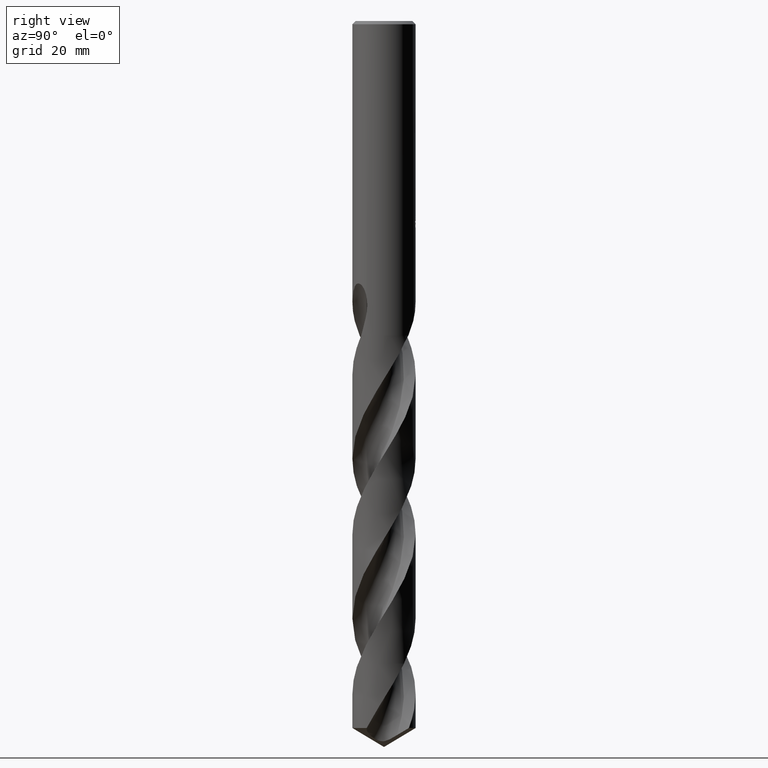
[diagram: clean part render]
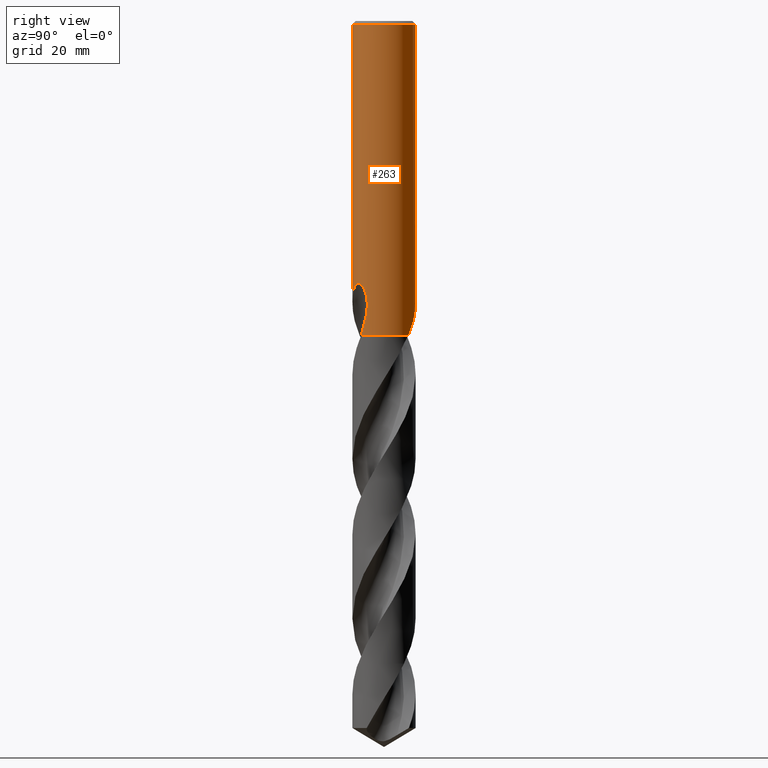
[diagram: same view with one face highlighted and labeled with its STEP entity id]
A machine part, right view. The second image highlights one B-rep face of the part: STEP entity #263.
In plain terms, the highlighted cylindrical surface (edge-blend (fillet) strip) has radius 7.75 mm, axis along (-0, -0, 1).
Its self-contained STEP definition (entity closure, byte-faithful):
#261=EDGE_CURVE('',#379,#699,#736,.T.);
#263=ADVANCED_FACE('',(#738),#739,.T.);
#291=EDGE_CURVE('',#341,#599,#770,.T.);
#311=EDGE_CURVE('',#697,#511,#792,.T.);
#319=VERTEX_POINT('',#801);
#341=VERTEX_POINT('',#825);
#357=EDGE_CURVE('',#485,#685,#844,.T.);
#361=EDGE_CURVE('',#699,#341,#849,.T.);
#365=VERTEX_POINT('',#854);
#367=EDGE_CURVE('',#599,#697,#856,.T.);
#379=VERTEX_POINT('',#868);
#401=VERTEX_POINT('',#892);
#427=EDGE_CURVE('',#365,#401,#920,.T.);
#455=EDGE_CURVE('',#319,#401,#950,.T.);
#479=EDGE_CURVE('',#575,#639,#975,.T.);
#485=VERTEX_POINT('',#981);
#511=VERTEX_POINT('',#1011);
#513=EDGE_CURVE('',#485,#511,#1013,.T.);
#557=EDGE_CURVE('',#669,#379,#1062,.T.);
#575=VERTEX_POINT('',#1081);
#599=VERTEX_POINT('',#1108);
#603=EDGE_CURVE('',#575,#685,#1112,.T.);
#611=EDGE_CURVE('',#319,#641,#1121,.T.);
#639=VERTEX_POINT('',#1149);
#641=VERTEX_POINT('',#1151);
#663=EDGE_CURVE('',#365,#669,#1175,.T.);
#669=VERTEX_POINT('',#1181);
#683=EDGE_CURVE('',#639,#641,#1196,.T.);
#685=VERTEX_POINT('',#1198);
#697=VERTEX_POINT('',#1212);
#699=VERTEX_POINT('',#1214);
#736=LINE('',#1246,#1247);
#738=FACE_OUTER_BOUND('',#1249,.T.);
#739=CYLINDRICAL_SURFACE('',#1250,7.75);
#770=LINE('',#2227,#2228);
#792=B_SPLINE_CURVE_WITH_KNOTS('',3,(#2463,#2464,#2465,#2466,#2467,#2468,#2469,#2470,#2471,#2472,#2473,#2474,#2475,#2476,#2477,#2478,#2479,#2480,#2481,#2482,#2483,#2484,#2485,#2486,#2487,#2488,#2489),.UNSPECIFIED.,.F.,.F.,(4,2,3,2,2,2,2,2,2,2,2,2,4),(-0.541951581782633,-0.270975790891317,0.0,0.270975790891317,0.541951581782634,0.813165260726697,1.08437893967076,1.3551971019943,1.62601526431784,1.89695021056667,2.1678851568155,2.43882010306434,2.70975504931317),.UNSPECIFIED.);
#801=CARTESIAN_POINT('',(4.9360343968483,5.97478572277956,-77.1));
#825=CARTESIAN_POINT('',(1.33721006514658,7.63376507640042,-50.2901657003257));
#844=CIRCLE('',#3154,7.75);
#849=B_SPLINE_CURVE_WITH_KNOTS('',3,(#3160,#3161,#3162,#3163,#3164,#3165,#3166,#3167,#3168,#3169),.UNSPECIFIED.,.F.,.F.,(4,2,2,2,4),(8.00141140635646,8.30904717966704,8.61668295297762,8.92441958328256,9.23215621358749),.UNSPECIFIED.);
#854=CARTESIAN_POINT('',(-7.24729156774638E-017,7.75,-51.0310253601033));
#856=B_SPLINE_CURVE_WITH_KNOTS('',3,(#3178,#3179,#3180,#3181,#3182,#3183,#3184,#3185,#3186,#3187),.UNSPECIFIED.,.F.,.F.,(4,2,2,2,4),(0.615473281841639,0.923209922762458,1.23094656368328,1.53858234748166,1.84621813128005),.UNSPECIFIED.);
#868=CARTESIAN_POINT('',(0.873560781758957,7.70060981744775,-49.3198931596091));
#892=CARTESIAN_POINT('',(-2.35370325795759E-012,7.75,-68.8669368238683));
#920=LINE('',#3407,#3408);
#950=B_SPLINE_CURVE_WITH_KNOTS('',3,(#3626,#3627,#3628,#3629,#3630,#3631,#3632,#3633,#3634,#3635,#3636,#3637,#3638,#3639,#3640,#3641,#3642,#3643,#3644,#3645,#3646,#3647,#3648,#3649,#3650,#3651,#3652,#3653,#3654,#3655),.UNSPECIFIED.,.F.,.F.,(4,2,2,2,2,2,2,2,2,2,2,2,2,2,4),(0.0,3.79341741066162,5.86636861631734,7.74448433522634,9.92672160655226,12.5478179394832,14.817318128479,15.8466209386008,16.5989605331823,17.3109232333634,18.2141345667042,19.5356069508276,21.4142088382462,22.643237703366,23.9348526179656),.UNSPECIFIED.);
#975=B_SPLINE_CURVE_WITH_KNOTS('',3,(#4017,#4018,#4019,#4020,#4021,#4022,#4023,#4024,#4025,#4026,#4027,#4028,#4029,#4030,#4031,#4032,#4033,#4034,#4035,#4036,#4037,#4038,#4039,#4040,#4041,#4042,#4043,#4044,#4045,#4046),.UNSPECIFIED.,.F.,.F.,(4,2,2,2,2,2,2,2,2,2,2,2,2,2,4),(0.0,3.79341741066165,5.86636861631742,7.74448433522648,9.92672160655248,12.5478179394837,14.8173181284795,15.8466209386018,16.5989605331833,17.3109232333642,18.2141345667049,19.5356069508284,21.4142088382493,22.6432377033713,23.9348526179729),.UNSPECIFIED.);
#981=CARTESIAN_POINT('',(0.0,7.75,-0.799999999999997));
#1011=CARTESIAN_POINT('',(-1.18960361364747E-014,7.75,-49.0232688117743));
#1013=LINE('',#5081,#5082);
#1062=ELLIPSE('',#5175,23.6219579436157,7.75);
#1081=CARTESIAN_POINT('',(2.36214095294474E-012,-7.75000000000001,-68.8669368238682));
#1108=CARTESIAN_POINT('',(1.33721006514658,7.63376507640042,-48.5150484364821));
#1112=LINE('',#5613,#5614);
#1121=CIRCLE('',#5782,7.75);
#1149=CARTESIAN_POINT('',(6.30572676569287,-4.5055865274595,-72.8612532363583));
#1151=CARTESIAN_POINT('',(5.38816952180957,-5.57046938814337,-77.1));
#1175=B_SPLINE_CURVE_WITH_KNOTS('',3,(#6452,#6453,#6454,#6455,#6456,#6457,#6458,#6459,#6460,#6461,#6462,#6463,#6464,#6465,#6466,#6467),.UNSPECIFIED.,.F.,.F.,(4,2,2,2,2,2,2,4),(5.84709226815887,6.15485130683978,6.46267360013421,6.77049589342865,7.07831818672308,7.38614048001751,7.69377627983509,8.00141207965267),.UNSPECIFIED.);
#1181=CARTESIAN_POINT('',(0.29010312703583,7.74456843056371,-50.9998328990228));
#1196=B_SPLINE_CURVE_WITH_KNOTS('',3,(#6939,#6940,#6941,#6942),.UNSPECIFIED.,.F.,.F.,(4,4),(0.0,4.44881791366115),.UNSPECIFIED.);
#1198=CARTESIAN_POINT('',(9.49069924212342E-016,-7.75,-0.799999999999997));
#1212=CARTESIAN_POINT('',(0.799431726384364,7.70865804889866,-48.000000276873));
#1214=CARTESIAN_POINT('',(0.873560781758956,7.70060981744775,-50.7587351791531));
#1246=CARTESIAN_POINT('',(0.873560781758957,7.70060981744775,-50.0393141693811));
#1247=VECTOR('',#7135,1.0);
#1249=EDGE_LOOP('',(#7137,#7138,#7139,#7140,#7141,#7142,#7143,#7144,#7145,#7146,#7147,#7148,#7149,#7150,#7151));
#1250=AXIS2_PLACEMENT_3D('',#7152,#7153,#7154);
#2227=CARTESIAN_POINT('',(1.33721006514658,7.63376507640042,-49.4026070684039));
#2228=VECTOR('',#7189,1.0);
#2463=CARTESIAN_POINT('',(0.664961639985142,7.72141994825746,-47.8134350921224));
#2464=CARTESIAN_POINT('',(0.728698885834064,7.71593095480654,-47.877200974006));
#2465=CARTESIAN_POINT('',(0.783984106617528,7.71033263491963,-47.9579666316848));
#2466=CARTESIAN_POINT('',(0.85733720264559,7.70252123319185,-48.1350216319595));
#2467=CARTESIAN_POINT('',(0.875400981188567,7.70040084165325,-48.2313167489563));
#2468=CARTESIAN_POINT('',(0.875400981188567,7.70040084165325,-48.3216420125868));
#2469=CARTESIAN_POINT('',(0.875400981188567,7.70040084165325,-48.4119672762172));
#2470=CARTESIAN_POINT('',(0.857337202645591,7.70252123319185,-48.508262393214));
#2471=CARTESIAN_POINT('',(0.783984106617523,7.71033263491963,-48.6853173934888));
#2472=CARTESIAN_POINT('',(0.728698885834064,7.71593095480654,-48.7660830511676));
#2473=CARTESIAN_POINT('',(0.60116843958304,7.72691376046345,-48.8936707946274));
#2474=CARTESIAN_POINT('',(0.520374014834367,7.7330187246311,-48.9490068762693));
#2475=CARTESIAN_POINT('',(0.343249360965991,7.74290304645482,-49.0224317810594));
#2476=CARTESIAN_POINT('',(0.246912509992356,7.74659326393315,-49.0405166027747));
#2477=CARTESIAN_POINT('',(0.0662720839900751,7.75024239459642,-49.0405166027747));
#2478=CARTESIAN_POINT('',(-0.0300038854938625,7.7504478545457,-49.0224789238631));
#2479=CARTESIAN_POINT('',(-0.207095321966796,7.74773861890407,-48.9491331835862));
#2480=CARTESIAN_POINT('',(-0.287912781697142,7.74491356866817,-48.8938266497492));
#2481=CARTESIAN_POINT('',(-0.41555773700909,7.73911462912551,-48.7662184517367));
#2482=CARTESIAN_POINT('',(-0.470894381802114,7.73576828953131,-48.6853925172609));
#2483=CARTESIAN_POINT('',(-0.544290513049244,7.73095080759028,-48.5082617282738));
#2484=CARTESIAN_POINT('',(-0.562348199187247,7.72957078387092,-48.4119536613364));
#2485=CARTESIAN_POINT('',(-0.562348199187247,7.72957078387092,-48.2313303638372));
#2486=CARTESIAN_POINT('',(-0.544290513049244,7.73095080759028,-48.1350222968998));
#2487=CARTESIAN_POINT('',(-0.470894381802114,7.73576828953131,-47.9578915079127));
#2488=CARTESIAN_POINT('',(-0.41555773700909,7.73911462912551,-47.8770655734369));
#2489=CARTESIAN_POINT('',(-0.351721501352756,7.74201472392595,-47.8132477203921));
#3154=AXIS2_PLACEMENT_3D('',#7287,#7288,#7289);
#3160=CARTESIAN_POINT('',(0.595649770493818,7.72707586030516,-50.9069866122182));
#3161=CARTESIAN_POINT('',(0.695919394136687,7.7193464709356,-50.8653950566208));
#3162=CARTESIAN_POINT('',(0.791983439288051,7.70994477092612,-50.8136466592594));
#3163=CARTESIAN_POINT('',(0.969555863903456,7.68963247272935,-50.6941793899783));
#3164=CARTESIAN_POINT('',(1.0510611501542,7.67874239789654,-50.6264524319793));
#3165=CARTESIAN_POINT('',(1.19534472171889,7.65760855855283,-50.4821904398216));
#3166=CARTESIAN_POINT('',(1.26309610210411,7.64661793083153,-50.4006744182108));
#3167=CARTESIAN_POINT('',(1.38260171114333,7.62591568612207,-50.2230847480411));
#3168=CARTESIAN_POINT('',(1.43436430523586,7.61622577591142,-50.1270141991867));
#3169=CARTESIAN_POINT('',(1.47596863371043,7.60815461148779,-50.0267355794347));
#3178=CARTESIAN_POINT('',(1.47596864177715,7.60815460992286,-48.7784785714682));
#3179=CARTESIAN_POINT('',(1.43436431186374,7.61622577467139,-48.678199948264));
#3180=CARTESIAN_POINT('',(1.38260171598154,7.6259156852616,-48.5821293961034));
#3181=CARTESIAN_POINT('',(1.26309610280848,7.64661793073184,-48.404539719822));
#3182=CARTESIAN_POINT('',(1.19534472007876,7.65760855883286,-48.3230236954059));
#3183=CARTESIAN_POINT('',(1.05106114354375,7.67874239882502,-48.1787616983119));
#3184=CARTESIAN_POINT('',(0.969555854501007,7.68963247395026,-48.1110347380059));
#3185=CARTESIAN_POINT('',(0.791983423802671,7.70994477255211,-47.9915674646544));
#3186=CARTESIAN_POINT('',(0.695919375360409,7.71934647267289,-47.9398190655292));
#3187=CARTESIAN_POINT('',(0.595649748284539,7.72707586201718,-47.8982275085153));
#3407=CARTESIAN_POINT('',(-9.49069924212342E-016,7.75,-65.05));
#3408=VECTOR('',#7380,1.0);
#3626=CARTESIAN_POINT('',(4.9360343968483,5.97478572277956,-77.1));
#3627=CARTESIAN_POINT('',(4.42500080060064,6.39697314941919,-76.0232024014518));
#3628=CARTESIAN_POINT('',(3.83762569201707,6.77216687091446,-75.0190961513844));
#3629=CARTESIAN_POINT('',(2.81342105883732,7.2321897324755,-73.3414507403934));
#3630=CARTESIAN_POINT('',(2.44468326100329,7.36458387863629,-72.7508837996524));
#3631=CARTESIAN_POINT('',(1.73077336241674,7.56246862871783,-71.6075649225821));
#3632=CARTESIAN_POINT('',(1.38877757208716,7.63238096469337,-71.060124295281));
#3633=CARTESIAN_POINT('',(0.648446639925861,7.73325762960889,-69.8801736690771));
#3634=CARTESIAN_POINT('',(0.243914434528973,7.75690954493945,-69.2384096457298));
#3635=CARTESIAN_POINT('',(-0.654409189888997,7.73787130292647,-67.8655978504634));
#3636=CARTESIAN_POINT('',(-1.18705183797595,7.67933590781923,-67.0844541919967));
#3637=CARTESIAN_POINT('',(-2.2137362868303,7.44317633062944,-65.7971987359769));
#3638=CARTESIAN_POINT('',(-2.78136929747014,7.26344685636064,-65.1695390881947));
#3639=CARTESIAN_POINT('',(-3.64070632246095,6.84809816915719,-64.581491704913));
#3640=CARTESIAN_POINT('',(-3.92530845356559,6.69120997499441,-64.4360892886023));
#3641=CARTESIAN_POINT('',(-4.42400537280382,6.3681732583236,-64.3244127118395));
#3642=CARTESIAN_POINT('',(-4.62855293486423,6.2210572910707,-64.3223452687737));
#3643=CARTESIAN_POINT('',(-5.00953704245579,5.9180284144636,-64.4201586225148));
#3644=CARTESIAN_POINT('',(-5.17616178088516,5.77167027936138,-64.5118539041457));
#3645=CARTESIAN_POINT('',(-5.51524644007911,5.45093390074707,-64.7987457798531));
#3646=CARTESIAN_POINT('',(-5.67212285564358,5.28471900839658,-65.0105622744841));
#3647=CARTESIAN_POINT('',(-5.99345674620803,4.9217768930951,-65.5905782078913));
#3648=CARTESIAN_POINT('',(-6.14704545712824,4.72413080572279,-66.0207798959623));
#3649=CARTESIAN_POINT('',(-6.43584920088576,4.32728144426504,-67.2244146317247));
#3650=CARTESIAN_POINT('',(-6.54024875609751,4.15825834430649,-68.0816206703474));
#3651=CARTESIAN_POINT('',(-6.59187718237636,4.07567648427862,-69.6679354413653));
#3652=CARTESIAN_POINT('',(-6.57971294823716,4.09584574141163,-70.2995809542235));
#3653=CARTESIAN_POINT('',(-6.49387596937069,4.23069547054599,-71.5815011472963));
#3654=CARTESIAN_POINT('',(-6.41724695330065,4.34951010375137,-72.226951168638));
#3655=CARTESIAN_POINT('',(-6.30572676569288,4.5055865274595,-72.8612532363583));
#4017=CARTESIAN_POINT('',(-4.9360343968483,-5.97478572277956,-77.1));
#4018=CARTESIAN_POINT('',(-4.42500080060063,-6.3969731494192,-76.0232024014518));
#4019=CARTESIAN_POINT('',(-3.83762569201706,-6.77216687091447,-75.0190961513844));
#4020=CARTESIAN_POINT('',(-2.81342105883732,-7.2321897324755,-73.3414507403934));
#4021=CARTESIAN_POINT('',(-2.44468326100329,-7.36458387863629,-72.7508837996524));
#4022=CARTESIAN_POINT('',(-1.73077336241674,-7.56246862871783,-71.6075649225821));
#4023=CARTESIAN_POINT('',(-1.38877757208716,-7.63238096469337,-71.060124295281));
#4024=CARTESIAN_POINT('',(-0.648446639925862,-7.73325762960889,-69.8801736690771));
#4025=CARTESIAN_POINT('',(-0.243914434528969,-7.75690954493945,-69.2384096457298));
#4026=CARTESIAN_POINT('',(0.654409189889035,-7.73787130292647,-67.8655978504633));
#4027=CARTESIAN_POINT('',(1.18705183797596,-7.67933590781922,-67.0844541919966));
#4028=CARTESIAN_POINT('',(2.21373628683024,-7.44317633062944,-65.797198735977));
#4029=CARTESIAN_POINT('',(2.78136929747013,-7.26344685636065,-65.1695390881947));
#4030=CARTESIAN_POINT('',(3.64070632246107,-6.84809816915714,-64.5814917049129));
#4031=CARTESIAN_POINT('',(3.92530845356562,-6.69120997499438,-64.4360892886023));
#4032=CARTESIAN_POINT('',(4.4240053728037,-6.36817325832368,-64.3244127118395));
#4033=CARTESIAN_POINT('',(4.62855293486418,-6.22105729107074,-64.3223452687737));
#4034=CARTESIAN_POINT('',(5.00953704245578,-5.9180284144636,-64.4201586225148));
#4035=CARTESIAN_POINT('',(5.17616178088516,-5.77167027936138,-64.5118539041457));
#4036=CARTESIAN_POINT('',(5.5152464400791,-5.45093390074709,-64.7987457798531));
#4037=CARTESIAN_POINT('',(5.67212285564356,-5.28471900839661,-65.0105622744841));
#4038=CARTESIAN_POINT('',(5.99345674620813,-4.92177689309499,-65.5905782078914));
#4039=CARTESIAN_POINT('',(6.1470454571283,-4.7241308057227,-66.0207798959626));
#4040=CARTESIAN_POINT('',(6.43584920088586,-4.32728144426491,-67.2244146317251));
#4041=CARTESIAN_POINT('',(6.54024875609753,-4.15825834430647,-68.0816206703479));
#4042=CARTESIAN_POINT('',(6.59187718237636,-4.07567648427862,-69.6679354413653));
#4043=CARTESIAN_POINT('',(6.57971294823715,-4.09584574141162,-70.2995809542235));
#4044=CARTESIAN_POINT('',(6.49387596937069,-4.23069547054599,-71.5815011472963));
#4045=CARTESIAN_POINT('',(6.41724695330065,-4.34951010375138,-72.226951168638));
#4046=CARTESIAN_POINT('',(6.30572676569288,-4.5055865274595,-72.8612532363583));
#5081=CARTESIAN_POINT('',(-9.49069924212342E-016,7.75,-65.05));
#5082=VECTOR('',#7467,1.0);
#5175=AXIS2_PLACEMENT_3D('',#7538,#7539,#7540);
#5613=CARTESIAN_POINT('',(9.49069924212342E-016,-7.75,-65.05));
#5614=VECTOR('',#7604,1.0);
#5782=AXIS2_PLACEMENT_3D('',#7616,#7617,#7618);
#6452=CARTESIAN_POINT('',(-1.37964056345512,7.62621084914843,-50.3117804166728));
#6453=CARTESIAN_POINT('',(-1.31991404742591,7.63701583812614,-50.4005503051943));
#6454=CARTESIAN_POINT('',(-1.25219845751392,7.64851762792136,-50.4820397944985));
#6455=CARTESIAN_POINT('',(-1.10796900869468,7.67073853978063,-50.6262916001107));
#6456=CARTESIAN_POINT('',(-1.02647265572928,7.68224270582905,-50.6940316383203));
#6457=CARTESIAN_POINT('',(-0.848911355890935,7.70388529340972,-50.8135291687237));
#6458=CARTESIAN_POINT('',(-0.752849409999963,7.71400318496327,-50.8652948372854));
#6459=CARTESIAN_POINT('',(-0.552294510881225,7.73095066235485,-50.948515315924));
#6460=CARTESIAN_POINT('',(-0.447636301326489,7.73777991515601,-50.9800361184942));
#6461=CARTESIAN_POINT('',(-0.236974606115904,7.74709360403719,-51.0214196327869));
#6462=CARTESIAN_POINT('',(-0.130968913334921,7.74957259651501,-51.0312723335086));
#6463=CARTESIAN_POINT('',(0.0741824105669787,7.75032338045747,-51.0312723335086));
#6464=CARTESIAN_POINT('',(0.180141596102909,7.74862258338523,-51.0214313565181));
#6465=CARTESIAN_POINT('',(0.390739535120139,7.74086077578506,-50.9800796024896));
#6466=CARTESIAN_POINT('',(0.495380410465676,7.73480523290425,-50.9485786062683));
#6467=CARTESIAN_POINT('',(0.595650042493946,7.72707583933773,-50.9069870471233));
#6939=CARTESIAN_POINT('',(6.30572676574549,-4.50558652738585,-72.8612532363872));
#6940=CARTESIAN_POINT('',(6.05616828938928,-4.85485238975761,-74.2807048577012));
#6941=CARTESIAN_POINT('',(5.75544813618119,-5.21521037887895,-75.7085694156866));
#6942=CARTESIAN_POINT('',(5.38816952180957,-5.57046938814338,-77.1));
#7135=DIRECTION('',(0.0,0.0,-1.0));
#7137=ORIENTED_EDGE('',*,*,#513,.F.);
#7138=ORIENTED_EDGE('',*,*,#357,.T.);
#7139=ORIENTED_EDGE('',*,*,#603,.F.);
#7140=ORIENTED_EDGE('',*,*,#479,.T.);
#7141=ORIENTED_EDGE('',*,*,#683,.T.);
#7142=ORIENTED_EDGE('',*,*,#611,.F.);
#7143=ORIENTED_EDGE('',*,*,#455,.T.);
#7144=ORIENTED_EDGE('',*,*,#427,.F.);
#7145=ORIENTED_EDGE('',*,*,#663,.T.);
#7146=ORIENTED_EDGE('',*,*,#557,.T.);
#7147=ORIENTED_EDGE('',*,*,#261,.T.);
#7148=ORIENTED_EDGE('',*,*,#361,.T.);
#7149=ORIENTED_EDGE('',*,*,#291,.T.);
#7150=ORIENTED_EDGE('',*,*,#367,.T.);
#7151=ORIENTED_EDGE('',*,*,#311,.T.);
#7152=CARTESIAN_POINT('',(0.0,0.0,-65.05));
#7153=DIRECTION('',(-0.0,-0.0,1.0));
#7154=DIRECTION('',(0.0,1.0,0.0));
#7189=DIRECTION('',(-0.0,-0.0,1.0));
#7287=CARTESIAN_POINT('',(0.0,0.0,-0.799999999999997));
#7288=DIRECTION('',(0.0,0.0,-1.0));
#7289=DIRECTION('',(0.0,1.0,0.0));
#7380=DIRECTION('',(0.0,0.0,-1.0));
#7467=DIRECTION('',(0.0,0.0,-1.0));
#7538=CARTESIAN_POINT('',(0.0,0.0,-51.8351219173269));
#7539=DIRECTION('',(0.944648353914092,0.0,-0.328084573619969));
#7540=DIRECTION('',(0.328084573619969,-0.0,0.944648353914092));
#7604=DIRECTION('',(-0.0,-0.0,1.0));
#7616=CARTESIAN_POINT('',(0.0,0.0,-77.1));
#7617=DIRECTION('',(0.0,0.0,-1.0));
#7618=DIRECTION('',(0.0,1.0,0.0));